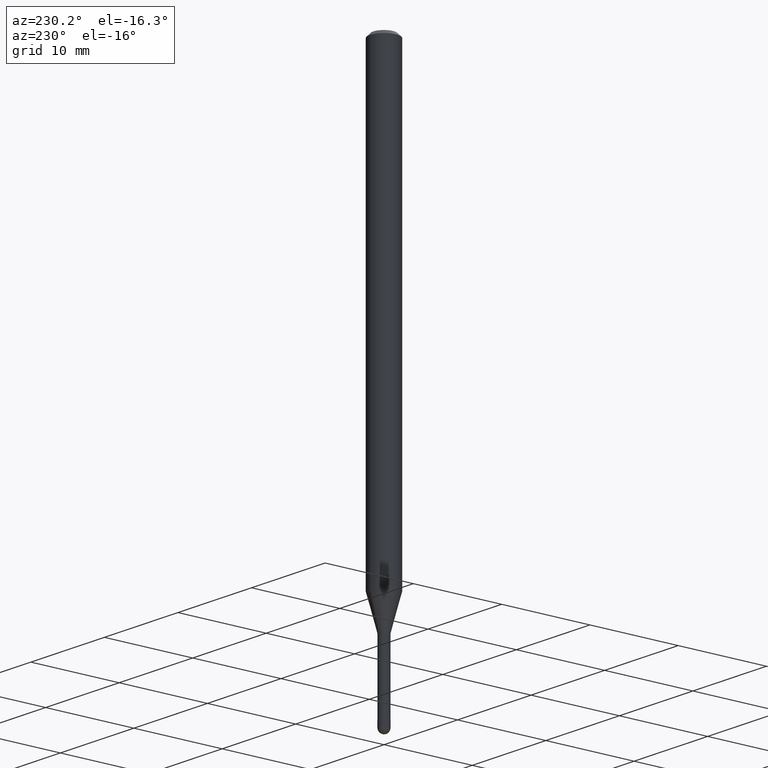
[diagram: clean part render]
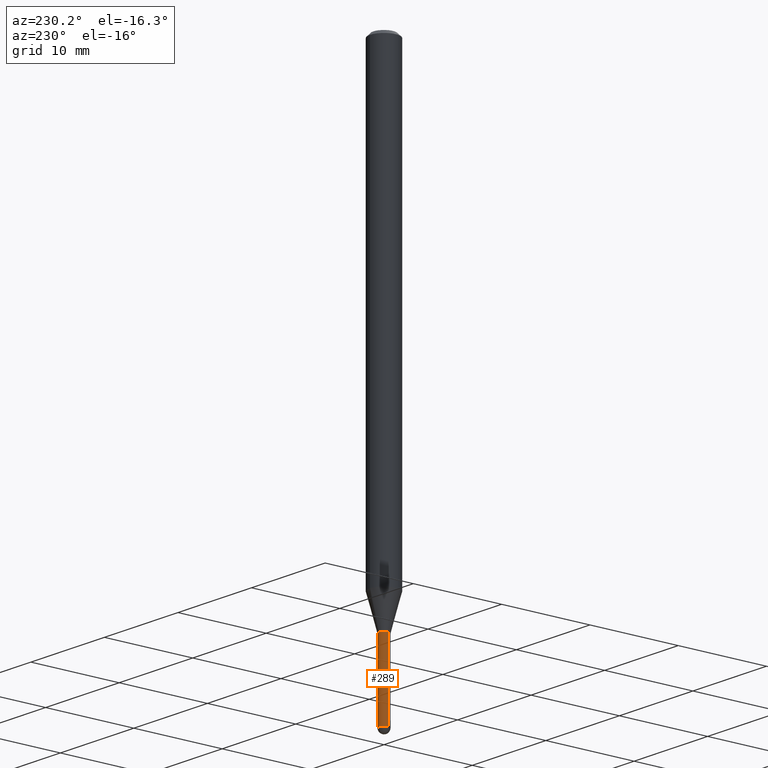
[diagram: same view with one face highlighted and labeled with its STEP entity id]
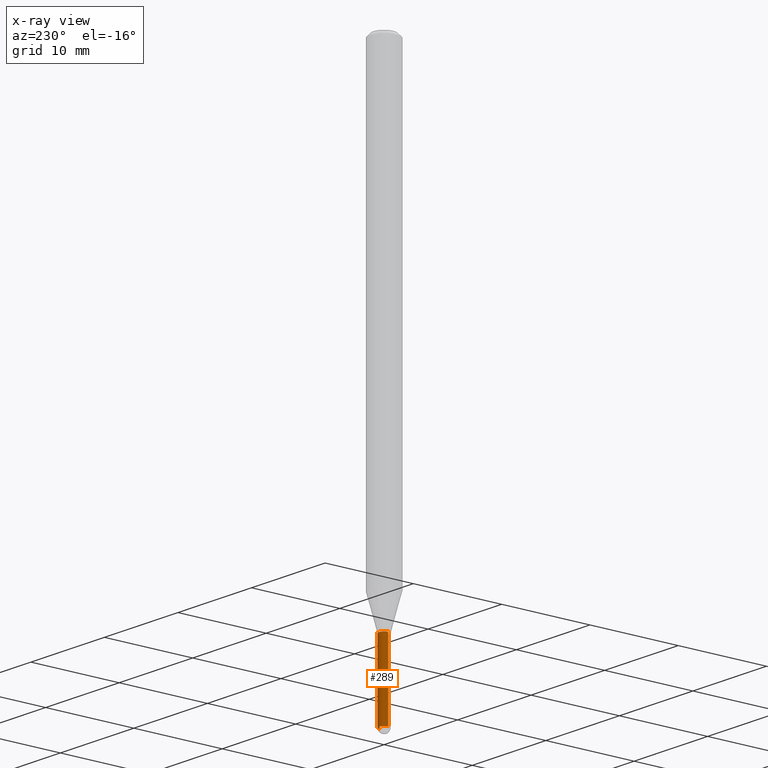
[diagram: x-ray of the same camera — body ghosted, the highlighted face saturated]
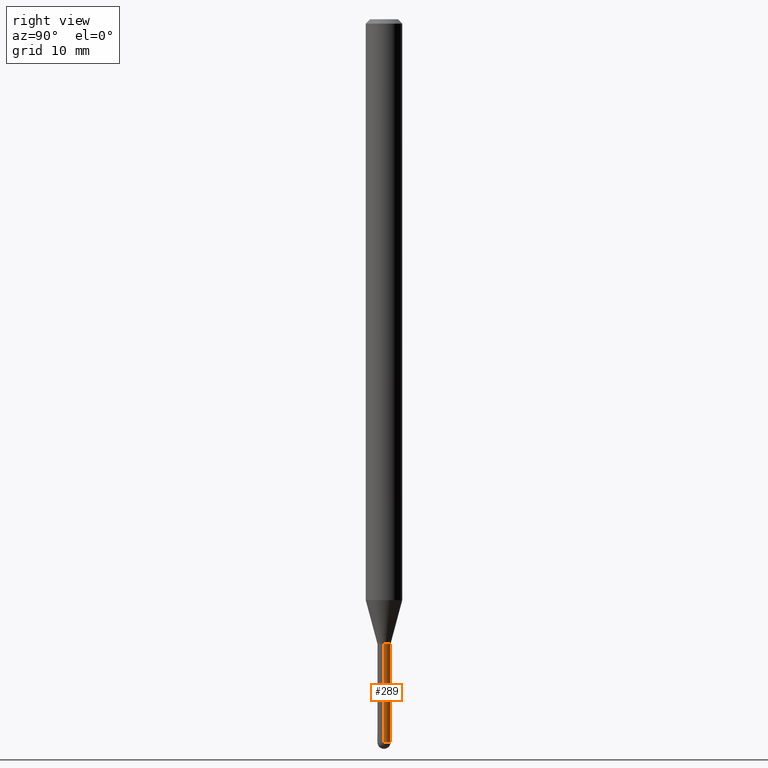
[diagram: same view with one face highlighted and labeled with its STEP entity id]
A machine part, auxiliary view. The second image highlights one B-rep face of the part: STEP entity #289.
The next image is the same camera in x-ray: the body ghosted, the highlighted face saturated — about 0% of this face is hidden behind the body in this view.
A second angle (right view) of the same face is appended — the face is thin or edge-on in the first view.
In plain terms, the highlighted cylindrical surface (edge-blend (fillet) strip) has radius 0.5715 mm, axis along (-0, 0, 1).
Its self-contained STEP definition (entity closure, byte-faithful):
#9 = EDGE_CURVE ( 'NONE', #407, #60, #411, .T. ) ;
#17 = ORIENTED_EDGE ( 'NONE', *, *, #485, .T. ) ;
#60 = VERTEX_POINT ( 'NONE', #215 ) ;
#63 = CARTESIAN_POINT ( 'NONE',  ( 6.058648967323676636E-29, -8.650145016983893338E-15, -2.477500000000000036 ) ) ;
#64 = CIRCLE ( 'NONE', #98, 0.02249999999999999917 ) ;
#81 = DIRECTION ( 'NONE',  ( -2.445468806185136877E-29, 3.491481338843145188E-15, 1.000000000000000000 ) ) ;
#90 = ORIENTED_EDGE ( 'NONE', *, *, #9, .T. ) ;
#98 = AXIS2_PLACEMENT_3D ( 'NONE', #465, #424, #108 ) ;
#103 = CARTESIAN_POINT ( 'NONE',  ( -0.02249999999999999570, -7.901085425508090322E-15, -2.477500000000000036 ) ) ;
#104 = CARTESIAN_POINT ( 'NONE',  ( 0.02249999999999999570, -8.218074201302054244E-15, -2.477500000000000036 ) ) ;
#108 = DIRECTION ( 'NONE',  ( 1.000000000000000000, -6.982962677686269077E-15, 0.000000000000000000 ) ) ;
#116 = LINE ( 'NONE', #439, #321 ) ;
#129 = ORIENTED_EDGE ( 'NONE', *, *, #160, .F. ) ;
#140 = CARTESIAN_POINT ( 'NONE',  ( 6.058648967323676636E-29, -8.650145016983893338E-15, -2.477500000000000036 ) ) ;
#160 = EDGE_CURVE ( 'NONE', #171, #60, #64, .T. ) ;
#162 = ORIENTED_EDGE ( 'NONE', *, *, #257, .T. ) ;
#166 = VERTEX_POINT ( 'NONE', #104 ) ;
#171 = VERTEX_POINT ( 'NONE', #262 ) ;
#178 = DIRECTION ( 'NONE',  ( 1.000000000000000000, -6.982962677686269866E-15, 0.000000000000000000 ) ) ;
#181 = DIRECTION ( 'NONE',  ( 1.000000000000000000, -6.982962677686269866E-15, 0.000000000000000000 ) ) ;
#215 = CARTESIAN_POINT ( 'NONE',  ( -0.02249999999999999917, -7.901085425508090322E-15, -2.140000000000000124 ) ) ;
#220 = DIRECTION ( 'NONE',  ( -2.445468806185136877E-29, 3.491481338843145188E-15, 1.000000000000000000 ) ) ;
#227 = DIRECTION ( 'NONE',  ( -2.445468806185136597E-29, 3.491481338843145583E-15, 1.000000000000000000 ) ) ;
#245 = ORIENTED_EDGE ( 'NONE', *, *, #356, .F. ) ;
#252 = CIRCLE ( 'NONE', #263, 0.02249999999999999570 ) ;
#257 = EDGE_CURVE ( 'NONE', #448, #407, #252, .T. ) ;
#262 = CARTESIAN_POINT ( 'NONE',  ( 0.02249999999999999917, -7.628886725372273518E-15, -2.140000000000000124 ) ) ;
#263 = AXIS2_PLACEMENT_3D ( 'NONE', #140, #376, #181 ) ;
#267 = VECTOR ( 'NONE', #220, 39.37007874015748143 ) ;
#289 = ADVANCED_FACE ( 'NONE', ( #473 ), #340, .T. ) ;
#298 = DIRECTION ( 'NONE',  ( 1.000000000000000000, -6.982962677686266711E-15, 4.876176775795935793E-29 ) ) ;
#321 = VECTOR ( 'NONE', #81, 39.37007874015748143 ) ;
#325 = CARTESIAN_POINT ( 'NONE',  ( -0.02249999999999999917, 1.598721155460225359E-16, -1.106760395307353780E-30 ) ) ;
#339 = EDGE_LOOP ( 'NONE', ( #162, #90, #129, #245, #17 ) ) ;
#340 = CYLINDRICAL_SURFACE ( 'NONE', #469, 0.02249999999999999917 ) ;
#356 = EDGE_CURVE ( 'NONE', #166, #171, #116, .T. ) ;
#376 = DIRECTION ( 'NONE',  ( -2.445468806185136597E-29, 3.491481338843145583E-15, 1.000000000000000000 ) ) ;
#407 = VERTEX_POINT ( 'NONE', #103 ) ;
#411 = LINE ( 'NONE', #325, #267 ) ;
#423 = CARTESIAN_POINT ( 'NONE',  ( 1.571166602480017334E-16, 0.02249999999999136718, -2.477500000000000036 ) ) ;
#424 = DIRECTION ( 'NONE',  ( -2.445468806185136597E-29, 3.491481338843145583E-15, 1.000000000000000000 ) ) ;
#439 = CARTESIAN_POINT ( 'NONE',  ( 0.02249999999999999917, -1.571166602479409911E-16, 1.097139774554085483E-30 ) ) ;
#448 = VERTEX_POINT ( 'NONE', #423 ) ;
#460 = AXIS2_PLACEMENT_3D ( 'NONE', #63, #508, #178 ) ;
#465 = CARTESIAN_POINT ( 'NONE',  ( 5.233303245236192586E-29, -7.471770065124331886E-15, -2.140000000000000124 ) ) ;
#469 = AXIS2_PLACEMENT_3D ( 'NONE', #510, #227, #298 ) ;
#473 = FACE_OUTER_BOUND ( 'NONE', #339, .T. ) ;
#485 = EDGE_CURVE ( 'NONE', #166, #448, #504, .T. ) ;
#504 = CIRCLE ( 'NONE', #460, 0.02249999999999999570 ) ;
#508 = DIRECTION ( 'NONE',  ( -2.445468806185136597E-29, 3.491481338843145583E-15, 1.000000000000000000 ) ) ;
#510 = CARTESIAN_POINT ( 'NONE',  ( 0.000000000000000000, 0.000000000000000000, 0.000000000000000000 ) ) ;